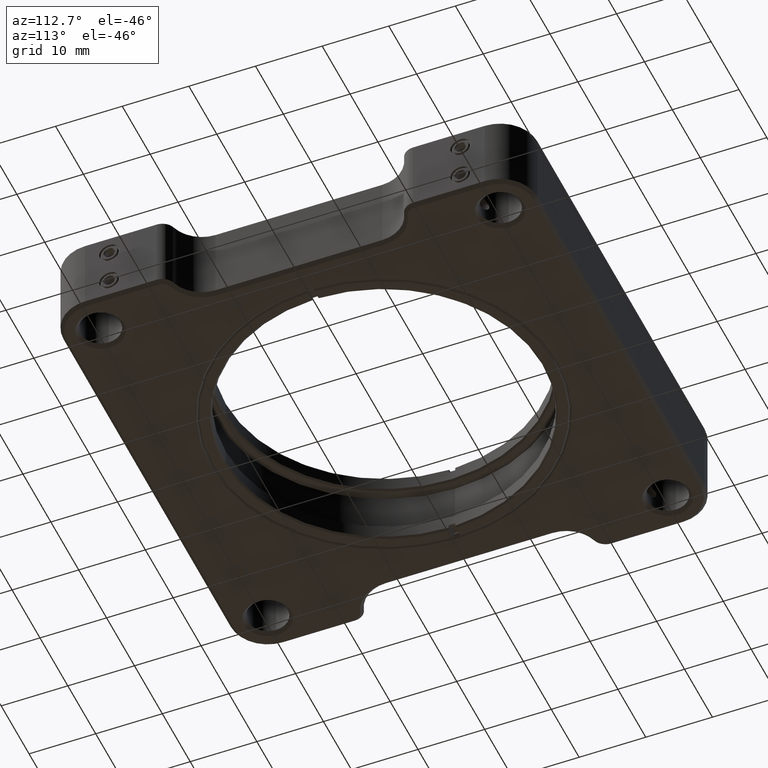
[diagram: clean part render]
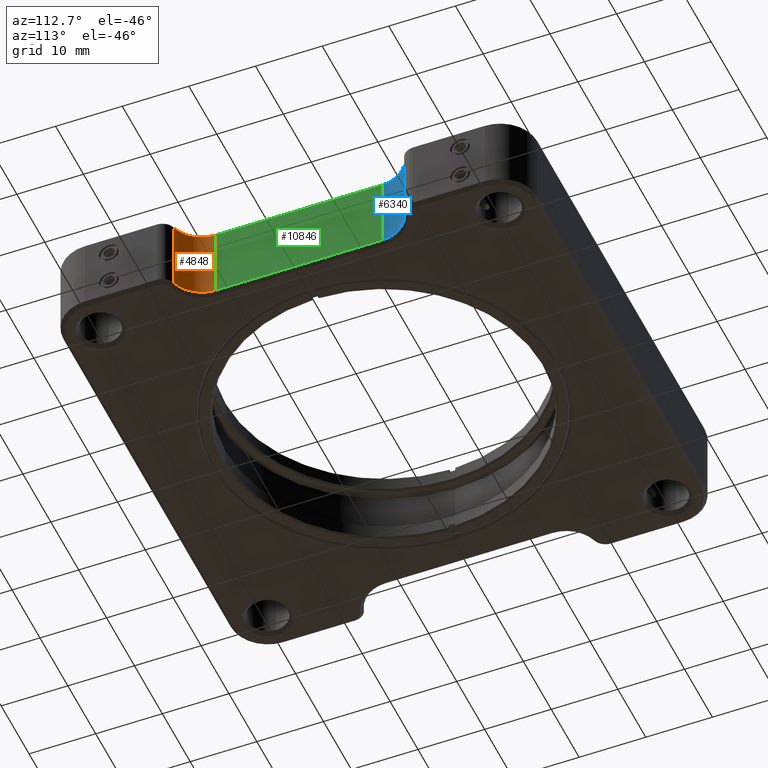
[diagram: same view with three faces highlighted in distinct colors, each labeled with its STEP entity id]
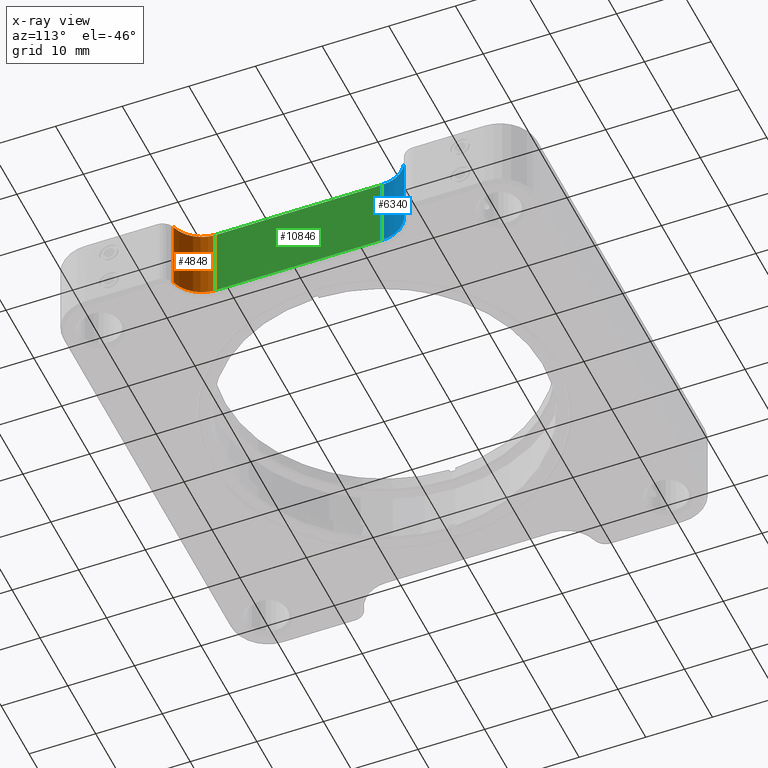
[diagram: x-ray of the same camera — body ghosted, the three highlighted faces saturated]
A machine part, auxiliary view with three faces highlighted in distinct colors.
The next image is the same camera in x-ray (body ghosted, the three faces saturated) — at least one of them is partly hidden behind the body in this view.
Their STEP definitions:

[orange] entity #4848 — the highlighted cylindrical surface (edge-blend (fillet) strip) has radius 5 mm, axis along (-0, -0, 1).
#132 = VERTEX_POINT ( 'NONE', #12517 ) ;
#149 = VECTOR ( 'NONE', #8748, 1000.000000000000000 ) ;
#505 = DIRECTION ( 'NONE',  ( -0.000000000000000000, -0.000000000000000000, 1.000000000000000000 ) ) ;
#1002 = LINE ( 'NONE', #2183, #3105 ) ;
#1074 = CIRCLE ( 'NONE', #1663, 5.000000000000004441 ) ;
#1663 = AXIS2_PLACEMENT_3D ( 'NONE', #1955, #7961, #4969 ) ;
#1863 = EDGE_CURVE ( 'NONE', #9477, #5876, #10962, .T. ) ;
#1955 = CARTESIAN_POINT ( 'NONE',  ( 35.55000000000001137, -12.50000000000000000, 5.500000000000000000 ) ) ;
#2183 = CARTESIAN_POINT ( 'NONE',  ( 30.55000000000001137, -12.50000000000000000, -6.000000000000000000 ) ) ;
#2392 = ORIENTED_EDGE ( 'NONE', *, *, #10120, .T. ) ;
#2434 = DIRECTION ( 'NONE',  ( 1.000000000000000000, 0.000000000000000000, 0.000000000000000000 ) ) ;
#2789 = AXIS2_PLACEMENT_3D ( 'NONE', #9264, #505, #2434 ) ;
#3105 = VECTOR ( 'NONE', #3303, 1000.000000000000000 ) ;
#3120 = CARTESIAN_POINT ( 'NONE',  ( 34.12142857142858077, -17.29157423749955313, -5.500000000000000000 ) ) ;
#3248 = AXIS2_PLACEMENT_3D ( 'NONE', #12675, #12810, #7744 ) ;
#3303 = DIRECTION ( 'NONE',  ( -0.000000000000000000, -0.000000000000000000, 1.000000000000000000 ) ) ;
#3574 = ORIENTED_EDGE ( 'NONE', *, *, #9776, .T. ) ;
#4284 = ORIENTED_EDGE ( 'NONE', *, *, #1863, .T. ) ;
#4848 = ADVANCED_FACE ( 'NONE', ( #5407 ), #10166, .F. ) ;
#4969 = DIRECTION ( 'NONE',  ( 1.000000000000000000, 0.000000000000000000, 0.000000000000000000 ) ) ;
#5261 = EDGE_CURVE ( 'NONE', #132, #9477, #1074, .T. ) ;
#5407 = FACE_OUTER_BOUND ( 'NONE', #12674, .T. ) ;
#5876 = VERTEX_POINT ( 'NONE', #3120 ) ;
#6345 = ORIENTED_EDGE ( 'NONE', *, *, #5261, .T. ) ;
#7744 = DIRECTION ( 'NONE',  ( 1.000000000000000000, 0.000000000000000000, 0.000000000000000000 ) ) ;
#7961 = DIRECTION ( 'NONE',  ( 0.000000000000000000, 0.000000000000000000, 1.000000000000000000 ) ) ;
#8748 = DIRECTION ( 'NONE',  ( 0.000000000000000000, 0.000000000000000000, -1.000000000000000000 ) ) ;
#8894 = VERTEX_POINT ( 'NONE', #11559 ) ;
#9264 = CARTESIAN_POINT ( 'NONE',  ( 35.55000000000001137, -12.50000000000000000, -6.000000000000000000 ) ) ;
#9477 = VERTEX_POINT ( 'NONE', #12636 ) ;
#9776 = EDGE_CURVE ( 'NONE', #8894, #132, #1002, .T. ) ;
#9816 = CARTESIAN_POINT ( 'NONE',  ( 34.12142857142858077, -17.29157423749955313, -6.000000000000000000 ) ) ;
#10120 = EDGE_CURVE ( 'NONE', #5876, #8894, #11634, .T. ) ;
#10166 = CYLINDRICAL_SURFACE ( 'NONE', #2789, 5.000000000000004441 ) ;
#10962 = LINE ( 'NONE', #9816, #149 ) ;
#11559 = CARTESIAN_POINT ( 'NONE',  ( 30.55000000000001137, -12.50000000000000000, -5.500000000000000000 ) ) ;
#11634 = CIRCLE ( 'NONE', #3248, 5.000000000000004441 ) ;
#12517 = CARTESIAN_POINT ( 'NONE',  ( 30.55000000000001137, -12.50000000000000000, 5.500000000000000000 ) ) ;
#12636 = CARTESIAN_POINT ( 'NONE',  ( 34.12142857142858077, -17.29157423749955313, 5.500000000000000000 ) ) ;
#12674 = EDGE_LOOP ( 'NONE', ( #3574, #6345, #4284, #2392 ) ) ;
#12675 = CARTESIAN_POINT ( 'NONE',  ( 35.55000000000001137, -12.50000000000000000, -5.500000000000000000 ) ) ;
#12810 = DIRECTION ( 'NONE',  ( -0.000000000000000000, -0.000000000000000000, -1.000000000000000000 ) ) ;

[blue] entity #6340 — the highlighted cylindrical surface (edge-blend (fillet) strip) has radius 5 mm, axis along (-0, -0, 1).
#304 = DIRECTION ( 'NONE',  ( -0.000000000000000000, -0.000000000000000000, 1.000000000000000000 ) ) ;
#591 = LINE ( 'NONE', #6978, #903 ) ;
#903 = VECTOR ( 'NONE', #7015, 1000.000000000000000 ) ;
#1024 = EDGE_CURVE ( 'NONE', #10235, #10638, #591, .T. ) ;
#1530 = DIRECTION ( 'NONE',  ( 0.000000000000000000, 0.000000000000000000, 1.000000000000000000 ) ) ;
#1687 = FACE_OUTER_BOUND ( 'NONE', #1968, .T. ) ;
#1968 = EDGE_LOOP ( 'NONE', ( #8551, #3484, #8106, #3194 ) ) ;
#2334 = CYLINDRICAL_SURFACE ( 'NONE', #6441, 5.000000000000004441 ) ;
#2826 = CARTESIAN_POINT ( 'NONE',  ( 35.55000000000001137, 12.50000000000000000, -5.500000000000000000 ) ) ;
#2919 = VERTEX_POINT ( 'NONE', #10508 ) ;
#3126 = AXIS2_PLACEMENT_3D ( 'NONE', #8800, #1530, #8634 ) ;
#3194 = ORIENTED_EDGE ( 'NONE', *, *, #9599, .T. ) ;
#3484 = ORIENTED_EDGE ( 'NONE', *, *, #13133, .T. ) ;
#3915 = CIRCLE ( 'NONE', #9876, 5.000000000000004441 ) ;
#4006 = LINE ( 'NONE', #11441, #11118 ) ;
#4111 = CARTESIAN_POINT ( 'NONE',  ( 34.12142857142858077, 17.29157423749955313, 5.500000000000000000 ) ) ;
#5356 = VERTEX_POINT ( 'NONE', #7231 ) ;
#5979 = CARTESIAN_POINT ( 'NONE',  ( 34.12142857142858077, 17.29157423749955313, -5.500000000000000000 ) ) ;
#6340 = ADVANCED_FACE ( 'NONE', ( #1687 ), #2334, .F. ) ;
#6441 = AXIS2_PLACEMENT_3D ( 'NONE', #7962, #8179, #11293 ) ;
#6741 = DIRECTION ( 'NONE',  ( 1.000000000000000000, 0.000000000000000000, 0.000000000000000000 ) ) ;
#6978 = CARTESIAN_POINT ( 'NONE',  ( 34.12142857142858077, 17.29157423749955313, -6.000000000000000000 ) ) ;
#7015 = DIRECTION ( 'NONE',  ( -0.000000000000000000, -0.000000000000000000, 1.000000000000000000 ) ) ;
#7231 = CARTESIAN_POINT ( 'NONE',  ( 30.55000000000001137, 12.50000000000000000, 5.500000000000000000 ) ) ;
#7842 = DIRECTION ( 'NONE',  ( -0.000000000000000000, -0.000000000000000000, -1.000000000000000000 ) ) ;
#7962 = CARTESIAN_POINT ( 'NONE',  ( 35.55000000000001137, 12.50000000000000000, -6.000000000000000000 ) ) ;
#8106 = ORIENTED_EDGE ( 'NONE', *, *, #8322, .F. ) ;
#8179 = DIRECTION ( 'NONE',  ( -0.000000000000000000, -0.000000000000000000, 1.000000000000000000 ) ) ;
#8322 = EDGE_CURVE ( 'NONE', #2919, #5356, #4006, .T. ) ;
#8551 = ORIENTED_EDGE ( 'NONE', *, *, #1024, .T. ) ;
#8634 = DIRECTION ( 'NONE',  ( 1.000000000000000000, 0.000000000000000000, 0.000000000000000000 ) ) ;
#8800 = CARTESIAN_POINT ( 'NONE',  ( 35.55000000000001137, 12.50000000000000000, 5.500000000000000000 ) ) ;
#9599 = EDGE_CURVE ( 'NONE', #2919, #10235, #3915, .T. ) ;
#9876 = AXIS2_PLACEMENT_3D ( 'NONE', #2826, #7842, #6741 ) ;
#10235 = VERTEX_POINT ( 'NONE', #5979 ) ;
#10508 = CARTESIAN_POINT ( 'NONE',  ( 30.55000000000001137, 12.50000000000000000, -5.500000000000000000 ) ) ;
#10638 = VERTEX_POINT ( 'NONE', #4111 ) ;
#11118 = VECTOR ( 'NONE', #304, 1000.000000000000000 ) ;
#11293 = DIRECTION ( 'NONE',  ( 1.000000000000000000, 0.000000000000000000, 0.000000000000000000 ) ) ;
#11441 = CARTESIAN_POINT ( 'NONE',  ( 30.55000000000001137, 12.50000000000000000, -6.000000000000000000 ) ) ;
#11609 = CIRCLE ( 'NONE', #3126, 5.000000000000004441 ) ;
#13133 = EDGE_CURVE ( 'NONE', #10638, #5356, #11609, .T. ) ;

[green] entity #10846 — the highlighted planar face has unit normal (-1, 0, 0).
#132 = VERTEX_POINT ( 'NONE', #12517 ) ;
#198 = DIRECTION ( 'NONE',  ( -1.000000000000000000, 0.000000000000000000, 0.000000000000000000 ) ) ;
#304 = DIRECTION ( 'NONE',  ( -0.000000000000000000, -0.000000000000000000, 1.000000000000000000 ) ) ;
#786 = AXIS2_PLACEMENT_3D ( 'NONE', #4370, #198, #11409 ) ;
#1002 = LINE ( 'NONE', #2183, #3105 ) ;
#1068 = EDGE_CURVE ( 'NONE', #8894, #2919, #10267, .T. ) ;
#2183 = CARTESIAN_POINT ( 'NONE',  ( 30.55000000000001137, -12.50000000000000000, -6.000000000000000000 ) ) ;
#2396 = PLANE ( 'NONE',  #786 ) ;
#2822 = DIRECTION ( 'NONE',  ( 0.000000000000000000, -1.000000000000000000, 0.000000000000000000 ) ) ;
#2857 = EDGE_LOOP ( 'NONE', ( #10123, #12979, #6046, #4464 ) ) ;
#2919 = VERTEX_POINT ( 'NONE', #10508 ) ;
#3105 = VECTOR ( 'NONE', #3303, 1000.000000000000000 ) ;
#3297 = VECTOR ( 'NONE', #7312, 1000.000000000000000 ) ;
#3303 = DIRECTION ( 'NONE',  ( -0.000000000000000000, -0.000000000000000000, 1.000000000000000000 ) ) ;
#4006 = LINE ( 'NONE', #11441, #11118 ) ;
#4370 = CARTESIAN_POINT ( 'NONE',  ( 30.55000000000001137, -12.50000000000000000, -6.000000000000000000 ) ) ;
#4464 = ORIENTED_EDGE ( 'NONE', *, *, #1068, .T. ) ;
#5128 = CARTESIAN_POINT ( 'NONE',  ( 30.55000000000001137, -12.50000000000000000, -5.500000000000000000 ) ) ;
#5356 = VERTEX_POINT ( 'NONE', #7231 ) ;
#5573 = FACE_OUTER_BOUND ( 'NONE', #2857, .T. ) ;
#6046 = ORIENTED_EDGE ( 'NONE', *, *, #9776, .F. ) ;
#7231 = CARTESIAN_POINT ( 'NONE',  ( 30.55000000000001137, 12.50000000000000000, 5.500000000000000000 ) ) ;
#7312 = DIRECTION ( 'NONE',  ( 0.000000000000000000, 1.000000000000000000, 0.000000000000000000 ) ) ;
#7683 = LINE ( 'NONE', #10845, #9424 ) ;
#8322 = EDGE_CURVE ( 'NONE', #2919, #5356, #4006, .T. ) ;
#8894 = VERTEX_POINT ( 'NONE', #11559 ) ;
#9424 = VECTOR ( 'NONE', #2822, 1000.000000000000000 ) ;
#9776 = EDGE_CURVE ( 'NONE', #8894, #132, #1002, .T. ) ;
#10123 = ORIENTED_EDGE ( 'NONE', *, *, #8322, .T. ) ;
#10267 = LINE ( 'NONE', #5128, #3297 ) ;
#10508 = CARTESIAN_POINT ( 'NONE',  ( 30.55000000000001137, 12.50000000000000000, -5.500000000000000000 ) ) ;
#10845 = CARTESIAN_POINT ( 'NONE',  ( 30.55000000000001137, -12.50000000000000000, 5.500000000000000000 ) ) ;
#10846 = ADVANCED_FACE ( 'NONE', ( #5573 ), #2396, .F. ) ;
#11118 = VECTOR ( 'NONE', #304, 1000.000000000000000 ) ;
#11409 = DIRECTION ( 'NONE',  ( 0.000000000000000000, 0.000000000000000000, 1.000000000000000000 ) ) ;
#11441 = CARTESIAN_POINT ( 'NONE',  ( 30.55000000000001137, 12.50000000000000000, -6.000000000000000000 ) ) ;
#11559 = CARTESIAN_POINT ( 'NONE',  ( 30.55000000000001137, -12.50000000000000000, -5.500000000000000000 ) ) ;
#12194 = EDGE_CURVE ( 'NONE', #5356, #132, #7683, .T. ) ;
#12517 = CARTESIAN_POINT ( 'NONE',  ( 30.55000000000001137, -12.50000000000000000, 5.500000000000000000 ) ) ;
#12979 = ORIENTED_EDGE ( 'NONE', *, *, #12194, .T. ) ;